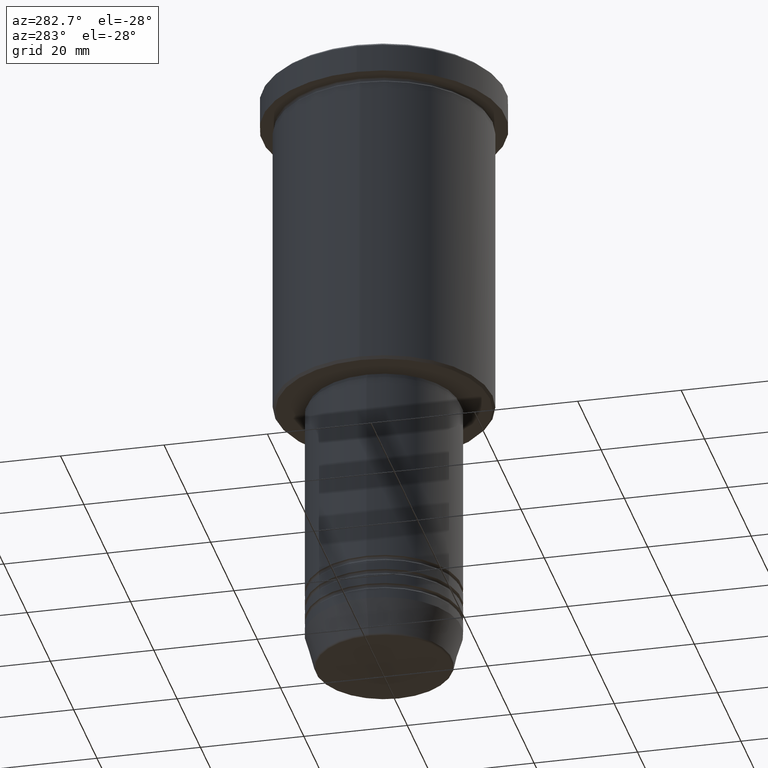
[diagram: clean part render]
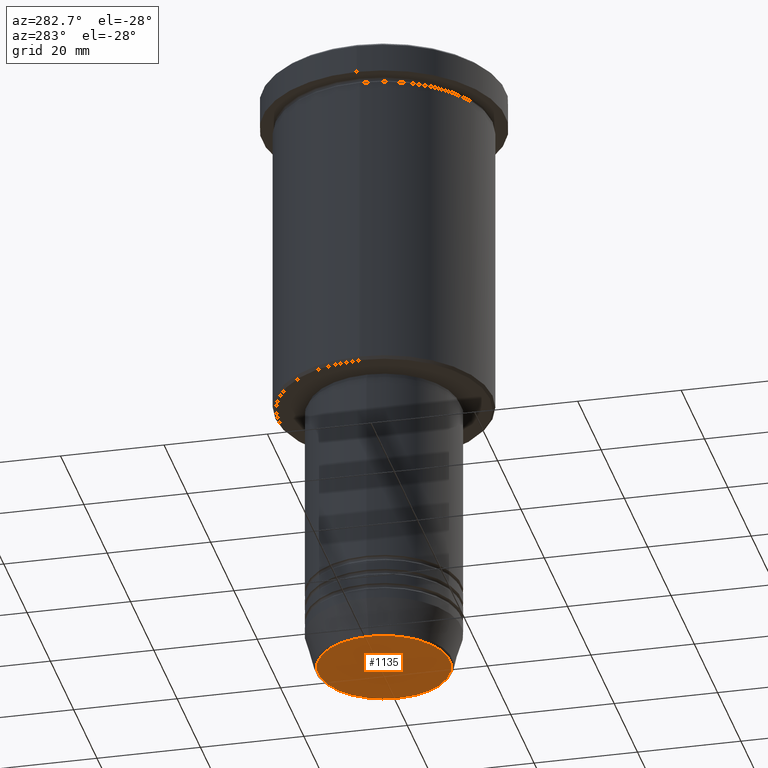
[diagram: same view with one face highlighted and labeled with its STEP entity id]
A machine part, auxiliary view. The second image highlights one B-rep face of the part: STEP entity #1135.
In plain terms, the highlighted planar face has unit normal (0, -0, 1).
Its self-contained STEP definition (entity closure, byte-faithful):
#61 = AXIS2_PLACEMENT_3D ( 'NONE', #1179, #1092, #652 ) ;
#111 = EDGE_CURVE ( 'NONE', #901, #821, #998, .T. ) ;
#185 = ORIENTED_EDGE ( 'NONE', *, *, #111, .T. ) ;
#311 = DIRECTION ( 'NONE',  ( 1.000000000000000000, 0.000000000000000000, 0.000000000000000000 ) ) ;
#334 = DIRECTION ( 'NONE',  ( 1.000000000000000000, 0.000000000000000000, 0.000000000000000000 ) ) ;
#349 = EDGE_LOOP ( 'NONE', ( #185, #882 ) ) ;
#408 = PLANE ( 'NONE',  #1039 ) ;
#492 = CIRCLE ( 'NONE', #1056, 12.74069215899265828 ) ;
#531 = CARTESIAN_POINT ( 'NONE',  ( 0.000000000000000000, 0.000000000000000000, -121.0000000000000142 ) ) ;
#652 = DIRECTION ( 'NONE',  ( 1.000000000000000000, 0.000000000000000000, 0.000000000000000000 ) ) ;
#687 = CARTESIAN_POINT ( 'NONE',  ( 0.000000000000000000, 0.000000000000000000, -121.0000000000000142 ) ) ;
#770 = FACE_OUTER_BOUND ( 'NONE', #349, .T. ) ;
#821 = VERTEX_POINT ( 'NONE', #950 ) ;
#882 = ORIENTED_EDGE ( 'NONE', *, *, #918, .T. ) ;
#901 = VERTEX_POINT ( 'NONE', #1137 ) ;
#918 = EDGE_CURVE ( 'NONE', #821, #901, #492, .T. ) ;
#950 = CARTESIAN_POINT ( 'NONE',  ( -12.74069215899265828, 1.589857736427681035E-15, -121.0000000000000142 ) ) ;
#958 = DIRECTION ( 'NONE',  ( 0.000000000000000000, 0.000000000000000000, -1.000000000000000000 ) ) ;
#998 = CIRCLE ( 'NONE', #61, 12.74069215899265828 ) ;
#1039 = AXIS2_PLACEMENT_3D ( 'NONE', #687, #1126, #311 ) ;
#1056 = AXIS2_PLACEMENT_3D ( 'NONE', #531, #958, #334 ) ;
#1092 = DIRECTION ( 'NONE',  ( 0.000000000000000000, 0.000000000000000000, -1.000000000000000000 ) ) ;
#1126 = DIRECTION ( 'NONE',  ( 0.000000000000000000, -0.000000000000000000, 1.000000000000000000 ) ) ;
#1135 = ADVANCED_FACE ( 'NONE', ( #770 ), #408, .F. ) ;
#1137 = CARTESIAN_POINT ( 'NONE',  ( 12.74069215899265828, 0.000000000000000000, -121.0000000000000142 ) ) ;
#1179 = CARTESIAN_POINT ( 'NONE',  ( 0.000000000000000000, 0.000000000000000000, -121.0000000000000142 ) ) ;